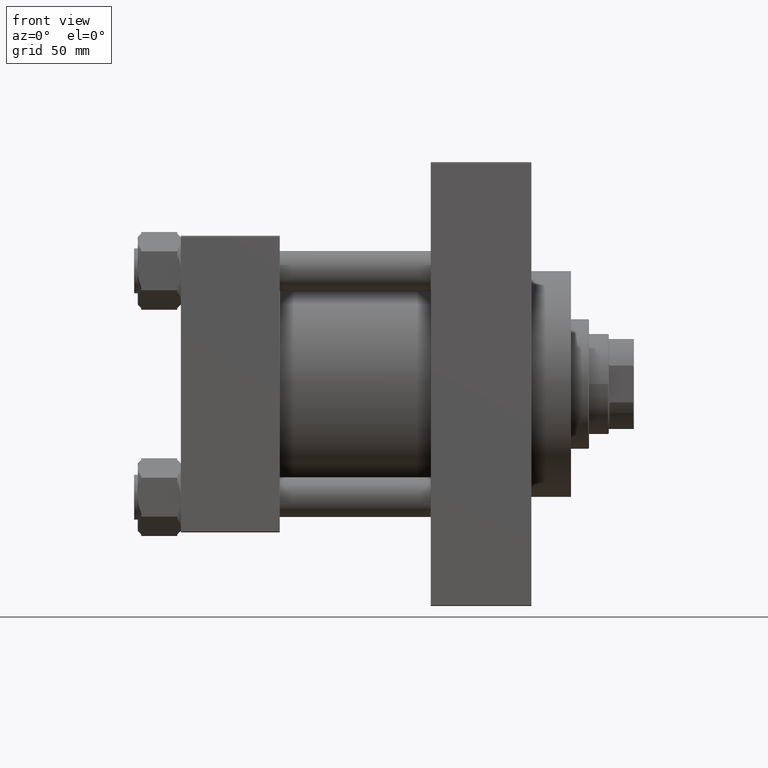
[diagram: clean part render]
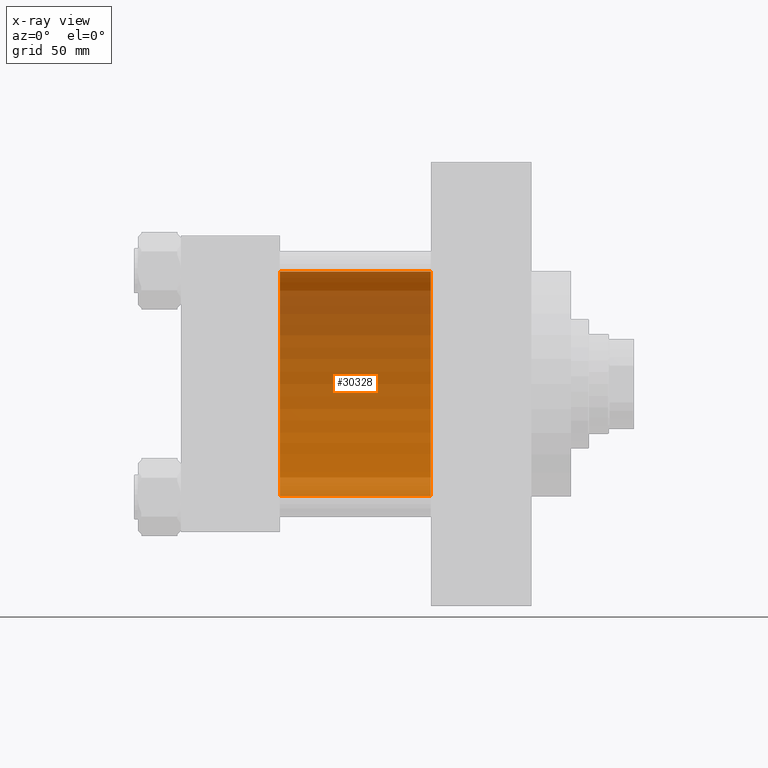
[diagram: x-ray — body ghosted, one internal face saturated and labeled with its STEP entity id]
A machine part, front view, then the same camera in x-ray: the body is ghosted and one INTERNAL B-rep face — a face not visible from any outside direction — is saturated and labeled: STEP entity #30328.
In plain terms, the highlighted cylindrical surface (partial cylindrical patch) has radius 62.5 mm, axis along (-1, -0, -0).
Its self-contained STEP definition (entity closure, byte-faithful):
#537 = VERTEX_POINT ( 'NONE', #5262 ) ;
#1206 = CARTESIAN_POINT ( 'NONE',  ( 139.0000000000000000, 5.051957280705745584E-15, -62.50000000000000000 ) ) ;
#2296 = CARTESIAN_POINT ( 'NONE',  ( 139.0000000000000000, 5.051957280705745584E-15, -62.50000000000000000 ) ) ;
#3784 = VERTEX_POINT ( 'NONE', #16220 ) ;
#5262 = CARTESIAN_POINT ( 'NONE',  ( 139.0000000000000000, -2.602085213965210642E-15, 62.50000000000000000 ) ) ;
#7221 = ORIENTED_EDGE ( 'NONE', *, *, #36480, .F. ) ;
#7696 = ORIENTED_EDGE ( 'NONE', *, *, #12953, .T. ) ;
#8503 = AXIS2_PLACEMENT_3D ( 'NONE', #33885, #26889, #26650 ) ;
#9291 = DIRECTION ( 'NONE',  ( 1.000000000000000000, 0.000000000000000000, 0.000000000000000000 ) ) ;
#12953 = EDGE_CURVE ( 'NONE', #537, #39114, #36354, .T. ) ;
#13434 = DIRECTION ( 'NONE',  ( -1.000000000000000000, -0.000000000000000000, -0.000000000000000000 ) ) ;
#14953 = CARTESIAN_POINT ( 'NONE',  ( 55.00000000000000000, -2.602085213965210642E-15, 0.000000000000000000 ) ) ;
#15670 = EDGE_CURVE ( 'NONE', #19989, #3784, #27667, .T. ) ;
#16220 = CARTESIAN_POINT ( 'NONE',  ( 55.00000000000000000, 5.051957280705745584E-15, -62.50000000000000000 ) ) ;
#17499 = CIRCLE ( 'NONE', #47496, 62.50000000000000000 ) ;
#17553 = CARTESIAN_POINT ( 'NONE',  ( 139.0000000000000000, -2.602085213965210642E-15, 62.50000000000000000 ) ) ;
#18726 = DIRECTION ( 'NONE',  ( -1.000000000000000000, -0.000000000000000000, -0.000000000000000000 ) ) ;
#19172 = FACE_OUTER_BOUND ( 'NONE', #37631, .T. ) ;
#19682 = VECTOR ( 'NONE', #13434, 1000.000000000000000 ) ;
#19989 = VERTEX_POINT ( 'NONE', #2296 ) ;
#23254 = ORIENTED_EDGE ( 'NONE', *, *, #31186, .T. ) ;
#23998 = DIRECTION ( 'NONE',  ( 0.000000000000000000, 0.000000000000000000, -1.000000000000000000 ) ) ;
#24239 = VECTOR ( 'NONE', #18726, 1000.000000000000000 ) ;
#26650 = DIRECTION ( 'NONE',  ( 0.000000000000000000, 0.000000000000000000, 1.000000000000000000 ) ) ;
#26889 = DIRECTION ( 'NONE',  ( -1.000000000000000000, -0.000000000000000000, -0.000000000000000000 ) ) ;
#27667 = LINE ( 'NONE', #1206, #19682 ) ;
#29660 = DIRECTION ( 'NONE',  ( 1.000000000000000000, 0.000000000000000000, 0.000000000000000000 ) ) ;
#30328 = ADVANCED_FACE ( 'NONE', ( #19172 ), #44730, .F. ) ;
#31186 = EDGE_CURVE ( 'NONE', #19989, #537, #39342, .T. ) ;
#33649 = ORIENTED_EDGE ( 'NONE', *, *, #15670, .F. ) ;
#33885 = CARTESIAN_POINT ( 'NONE',  ( 139.0000000000000000, -2.602085213965210642E-15, 0.000000000000000000 ) ) ;
#34707 = AXIS2_PLACEMENT_3D ( 'NONE', #42317, #9291, #23998 ) ;
#36354 = LINE ( 'NONE', #17553, #24239 ) ;
#36480 = EDGE_CURVE ( 'NONE', #3784, #39114, #17499, .T. ) ;
#37631 = EDGE_LOOP ( 'NONE', ( #33649, #23254, #7696, #7221 ) ) ;
#39114 = VERTEX_POINT ( 'NONE', #42562 ) ;
#39342 = CIRCLE ( 'NONE', #34707, 62.50000000000000000 ) ;
#42317 = CARTESIAN_POINT ( 'NONE',  ( 139.0000000000000000, -2.602085213965210642E-15, 0.000000000000000000 ) ) ;
#42562 = CARTESIAN_POINT ( 'NONE',  ( 55.00000000000000000, -2.602085213965210642E-15, 62.50000000000000000 ) ) ;
#44371 = DIRECTION ( 'NONE',  ( 0.000000000000000000, 0.000000000000000000, -1.000000000000000000 ) ) ;
#44730 = CYLINDRICAL_SURFACE ( 'NONE', #8503, 62.50000000000000000 ) ;
#47496 = AXIS2_PLACEMENT_3D ( 'NONE', #14953, #29660, #44371 ) ;